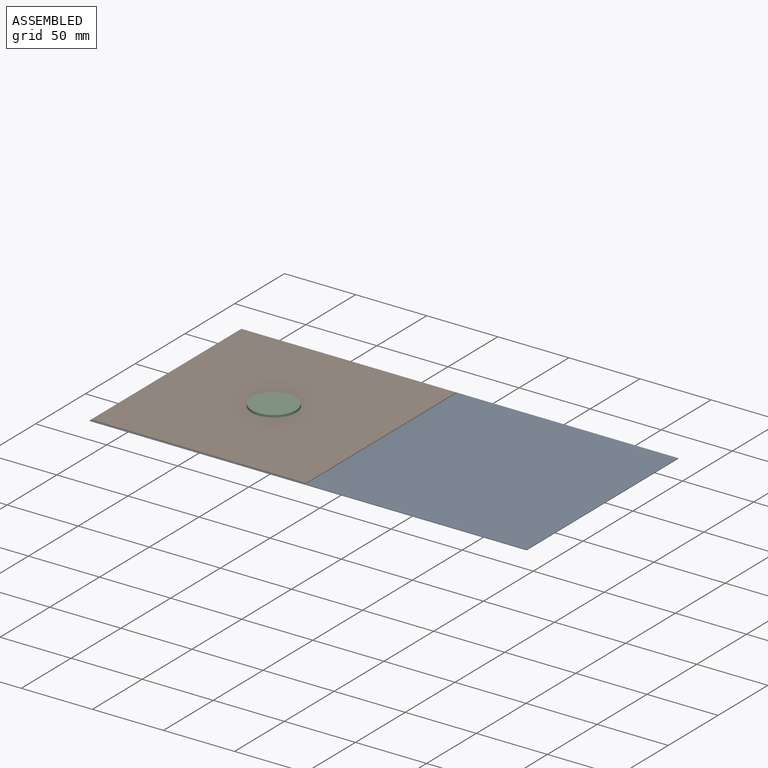
[diagram: assembled view]
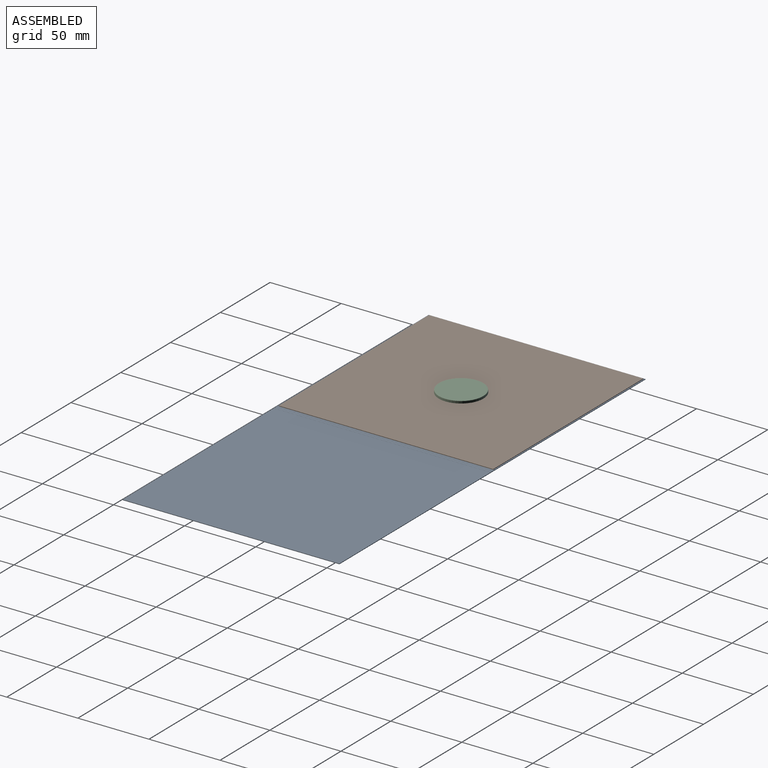
[diagram: assembled view, second angle]
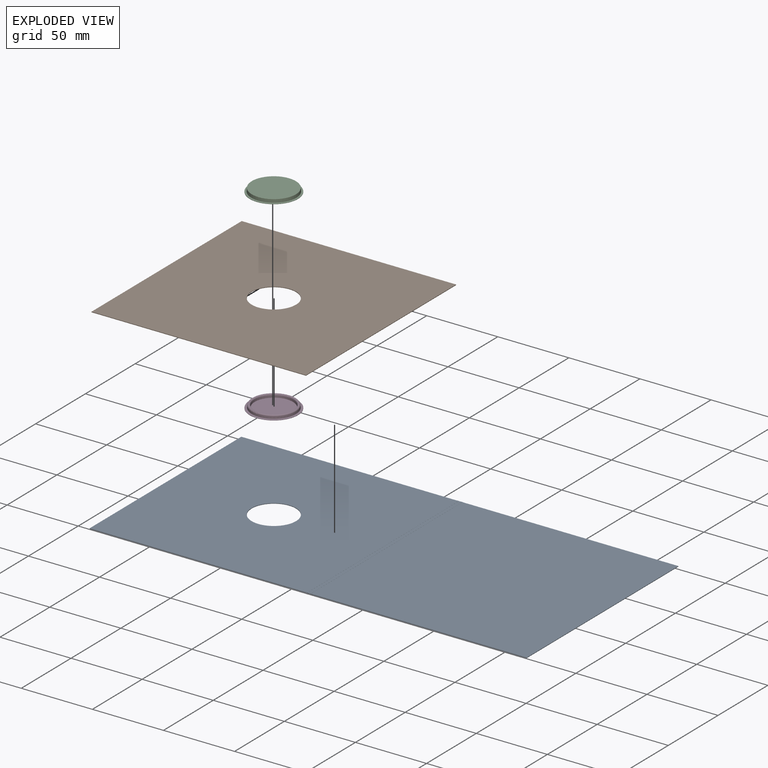
[diagram: exploded view]
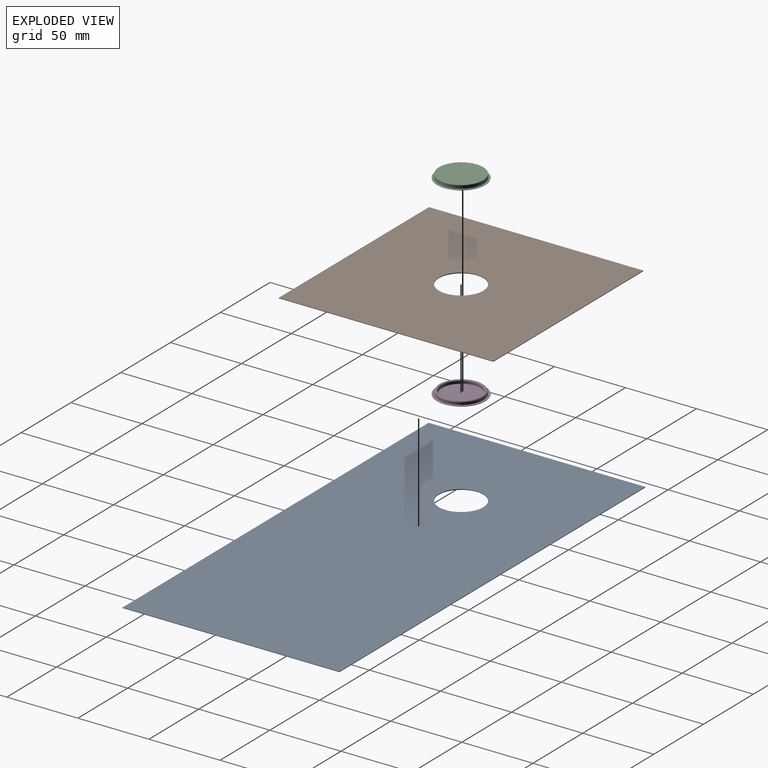
[diagram: exploded view, second angle]
ASSEMBLY  parts=4 mates=3
PART A: 19 faces, bbox 307.3x152.4x0.5 mm
  f0: plane 152.4x151.77mm, normal (0,0,1), area 23129mm2, adj f2,f5,f8,f16
  f1: plane 152.4x1.27mm, normal (0,0,1), area 193.5mm2, adj f2,f5,f15,f18
  f2: plane 307.34x0.48mm, normal (0,-1,0), area 125mm2, adj f0,f1,f3,f4,f6,f8,f9,f10
  f3: plane 152.4x152.11mm, normal (0,0,-1), area 22414.6mm2, adj f2,f5,f6,f7,f12
  f4: plane 152.4x1.96mm, normal (0,0,-1), area 298.1mm2, adj f2,f5,f11,f12
  f5: plane 307.34x0.48mm, normal (0,1,0), area 125mm2, adj f0,f1,f3,f4,f6,f8,f9,f10
  f6: plane 152.4x0.41mm, normal (-1,0,0), area 61.9mm2, adj f2,f3,f5,f9
  f7: cylinder r=15.62mm len=31.24mm, axis (0,0,-1), area 39.9mm2, adj f3,f9
  f8: plane 152.4x0.41mm, normal (1,0,0), area 61.9mm2, adj f0,f2,f5,f10
  f9: plane 152.4x151.77mm, normal (0,0,1), area 22362.4mm2, adj f2,f5,f6,f7,f13
  f10: plane 152.4x152.11mm, normal (0,0,-1), area 23181.2mm2, adj f2,f5,f8,f11
  f11: cylinder r=0.4mm len=152.4mm, axis (0,-1,0), area 99.9mm2, adj f2,f4,f5,f10
  f12: cylinder r=0.4mm len=152.4mm, axis (0,-1,0), area 99.9mm2, adj f2,f3,f4,f5
  f13: cylinder r=0.08mm len=152.4mm, axis (0,-1,0), area 18.2mm2, adj f2,f5,f9,f14
  f14: plane 152.4x1.12mm, normal (0,0,1), area 170.3mm2, adj f2,f5,f13,f15
  f15: cylinder r=0.08mm len=152.4mm, axis (0,-1,0), area 18.2mm2, adj f1,f2,f5,f14
  f16: cylinder r=0.08mm len=152.4mm, axis (0,-1,0), area 18.2mm2, adj f0,f2,f5,f17
  f17: plane 152.4x1.12mm, normal (0,0,1), area 170.3mm2, adj f2,f5,f16,f18
  f18: cylinder r=0.08mm len=152.4mm, axis (0,-1,0), area 18.2mm2, adj f1,f2,f5,f17
PART B: 7 faces, bbox 150.8x150.8x0.4 mm
  f0: plane 150.81x0.41mm, normal (0,1,0), area 61.3mm2, adj f1,f4,f5,f6
  f1: plane 150.81x0.41mm, normal (-1,0,0), area 61.3mm2, adj f0,f2,f5,f6
  f2: plane 150.81x0.41mm, normal (0,-1,0), area 61.3mm2, adj f1,f4,f5,f6
  f3: cylinder r=15.62mm len=31.24mm, axis (0,0,-1), area 39.9mm2, adj f5,f6
  f4: plane 150.81x0.41mm, normal (1,0,0), area 61.3mm2, adj f0,f2,f5,f6
  f5: plane 150.81x150.81mm, normal (0,0,1), area 21977.8mm2, adj f0,f1,f2,f3,f4
  f6: plane 150.81x150.81mm, normal (0,0,-1), area 21977.8mm2, adj f0,f1,f2,f3,f4
PART C: 11 faces, bbox 34.4x34.4x2.7 mm
  f0: plane 33.99x33.99mm, normal (0,0,-1), area 144.9mm2, adj f1,f8
  f1: cylinder r=16.99mm len=33.99mm, axis (0,0,-1), area 27.1mm2, adj f0,f2
  f2: plane 33.99x33.99mm, normal (0,0,1), area 121.1mm2, adj f1,f9
  f3: cone r=15.7mm half-angle=3deg, axis (0,0,-1), area 216.2mm2, adj f9,f10
  f4: plane 30.9x30.9mm, normal (0,0,1), area 749.8mm2, adj f10
  f5: cone r=15.44mm half-angle=3deg, axis (0,0,-1), area 212.8mm2, adj f7,f8
  f6: plane 30.42x30.42mm, normal (0,0,-1), area 726.6mm2, adj f7
  f7: torus R=15.21mm, axis (0,0,1), area 18.5mm2, adj f5,f6
  f8: torus R=15.58mm, axis (0,0,-1), area 18.8mm2, adj f0,f5
  f9: torus R=15.82mm, axis (0,0,1), area 19.1mm2, adj f2,f3
  f10: torus R=15.45mm, axis (0,0,1), area 18.8mm2, adj f3,f4
PART D: 19 faces, bbox 34x34x2.7 mm
  f0: cylinder r=16.99mm len=33.99mm, axis (0,0,-1), area 27.1mm2, adj f1,f10
  f1: plane 33.99x33.99mm, normal (0,0,1), area 144.9mm2, adj f0,f15
  f2: cone r=15.33mm half-angle=3deg, axis (0,0,-1), area 142.9mm2, adj f11,f15
  f3: plane 29.02x29.02mm, normal (0,0,1), area 5.8mm2, adj f11,f12
  f4: cone r=13.5mm half-angle=3deg, axis (0,0,1), area 125.6mm2, adj f12,f16
  f5: plane 26.76x26.76mm, normal (0,0,1), area 562.4mm2, adj f16
  f6: plane 27.24x27.24mm, normal (0,0,-1), area 582.8mm2, adj f17
  f7: cone r=13.87mm half-angle=3deg, axis (0,0,1), area 146.7mm2, adj f13,f17
  f8: plane 28.97x28.97mm, normal (0,0,-1), area 1.4mm2, adj f13,f14
  f9: cone r=15.22mm half-angle=3deg, axis (0,0,-1), area 161.3mm2, adj f14,f18
  f10: plane 33.99x33.99mm, normal (0,0,-1), area 168.3mm2, adj f0,f18
  f11: torus R=14.51mm, axis (0,0,-1), area 124mm2, adj f2,f3
  f12: torus R=14.45mm, axis (0,0,-1), area 114.6mm2, adj f3,f4
  f13: torus R=14.47mm, axis (0,0,1), area 85.3mm2, adj f7,f8
  f14: torus R=14.49mm, axis (0,0,1), area 90.2mm2, adj f8,f9
  f15: torus R=15.58mm, axis (0,0,-1), area 18.8mm2, adj f1,f2
  f16: torus R=13.38mm, axis (0,0,-1), area 16.3mm2, adj f4,f5
  f17: torus R=13.62mm, axis (0,0,1), area 16.6mm2, adj f6,f7
  f18: torus R=15.34mm, axis (0,0,1), area 18.5mm2, adj f9,f10
PLACE A t=(-135.96,349.45,-139.06)mm fixed
PLACE B t=(-135.96,551.85,-138.66)mm
PLACE C t=(-59.76,9.34,-139.32)mm
PLACE D t=(-59.76,9.34,-139.32)mm
MATE fastened C.f1 <-> A.f7  axis (0,0,1) through (-59.76,-82.35,-139.06)mm
MATE fastened A.f7 <-> B.f3  axis (0,0,1) through (-59.76,-82.35,-138.66)mm
MATE fastened D.f0 <-> C.f1  axis (0,0,1) through (-59.76,-82.35,-139.32)mm
